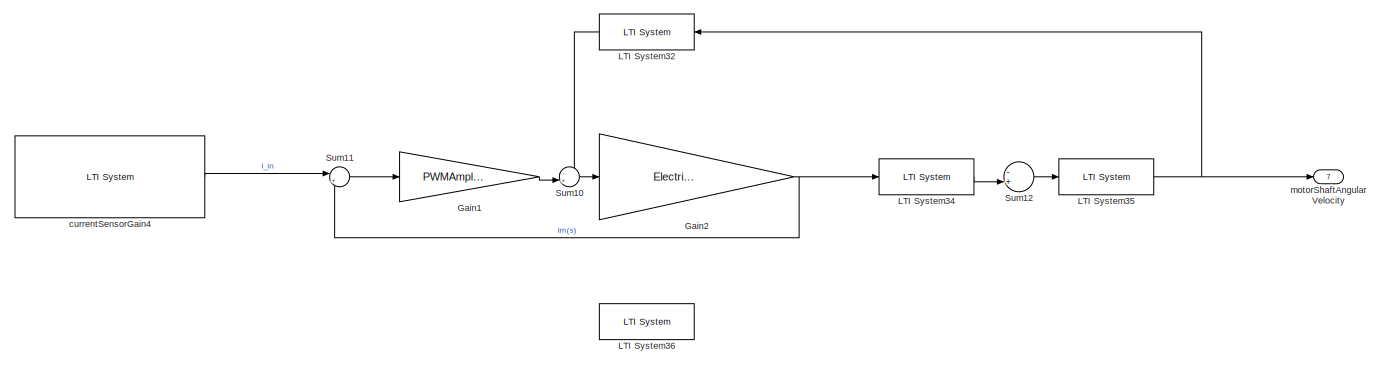
[diagram: root canvas - part 1/5, full width, top band]
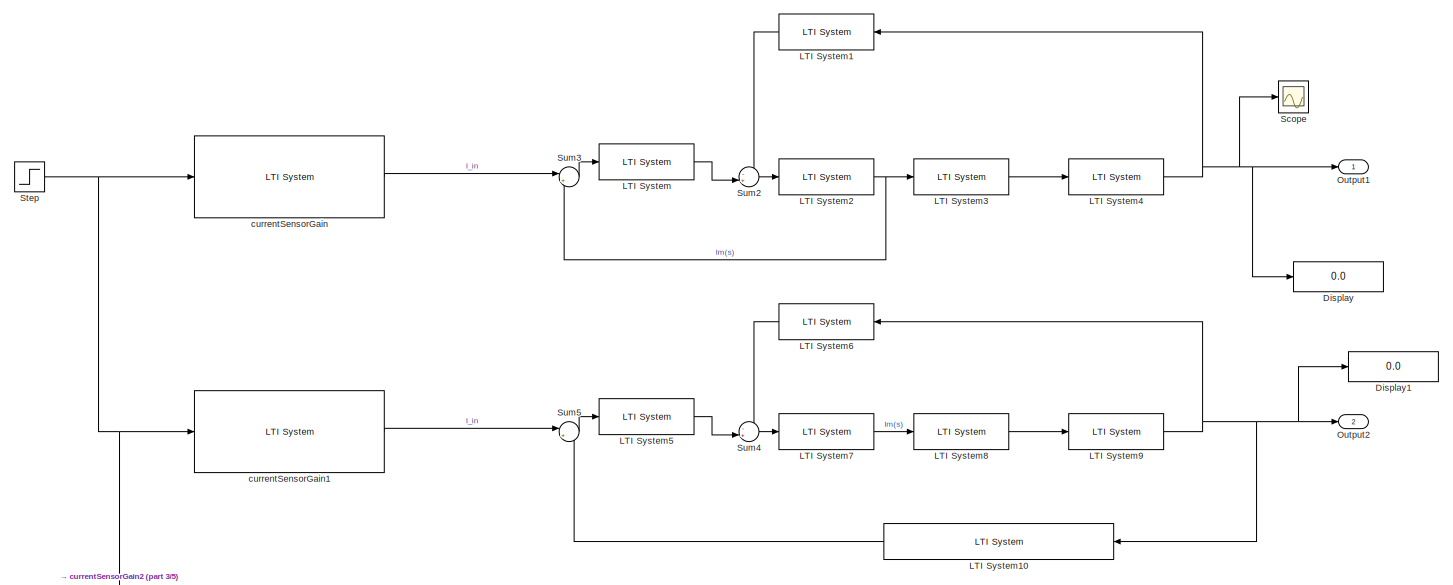
[diagram: root canvas - part 2/5, full width, top band]
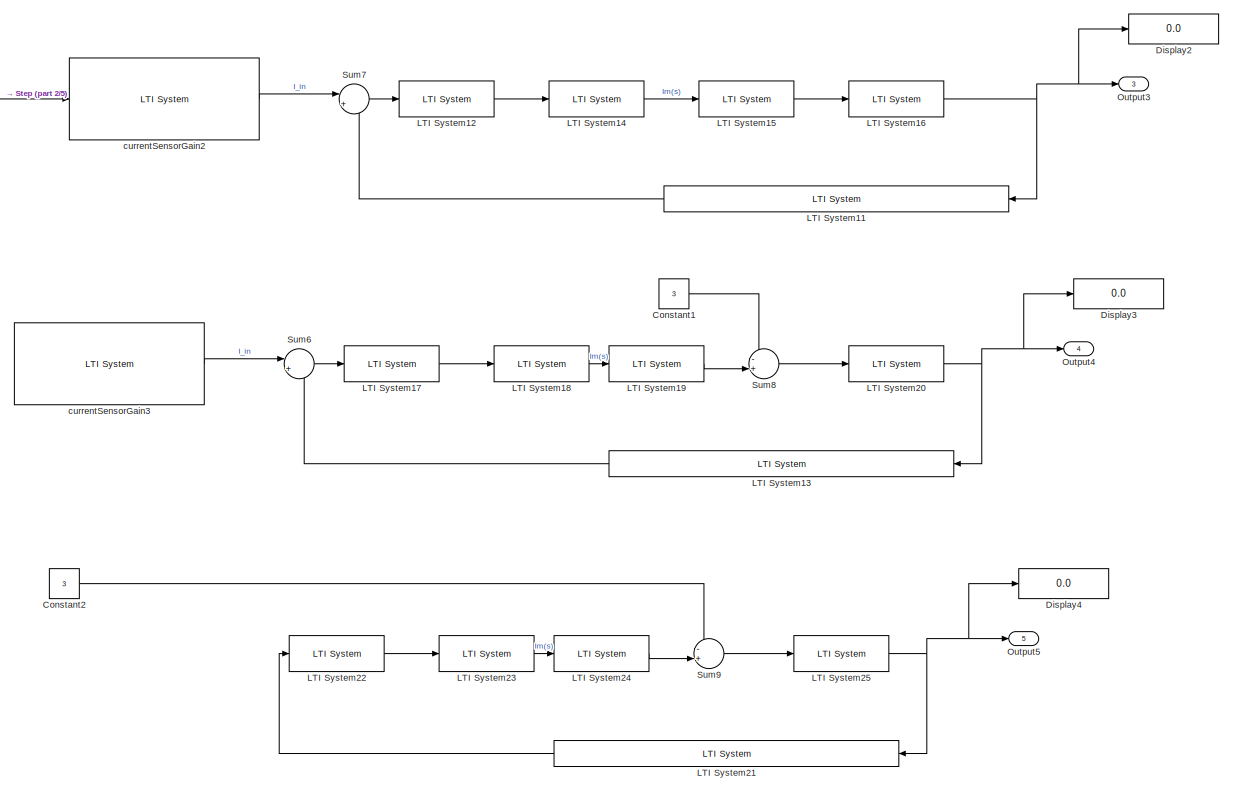
[diagram: root canvas - part 3/5, central region]
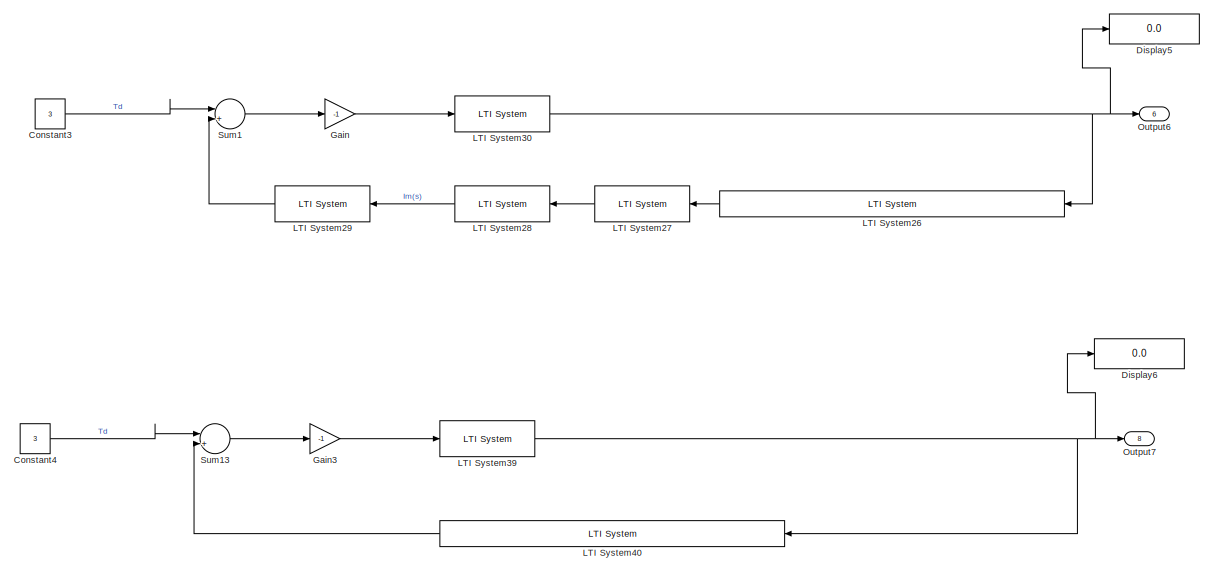
[diagram: root canvas - part 4/5, bottom center region]
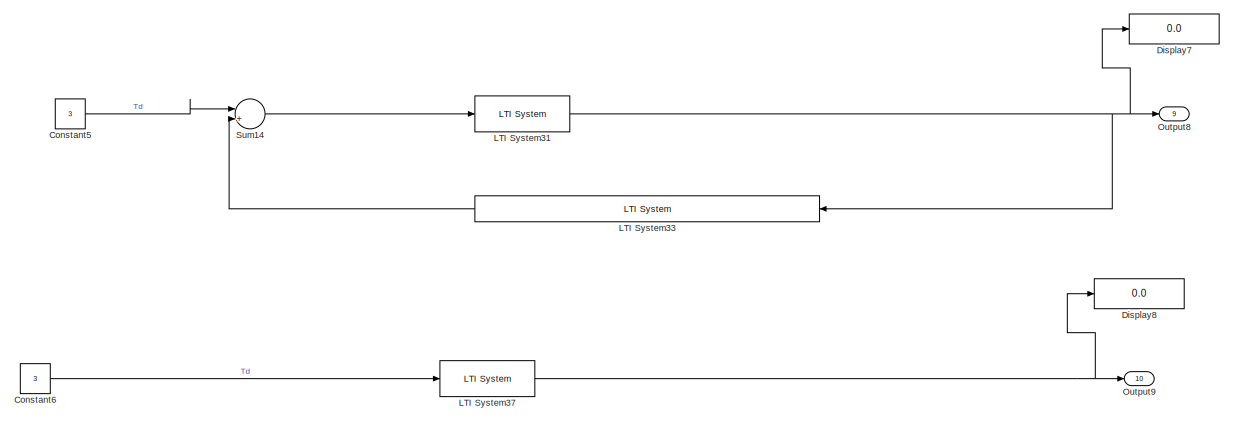
[diagram: root canvas - part 5/5, bottom center region]
MODEL slx_3748cdfd415a
KIND model
CONFIG AbsTol = auto
CONFIG EnableMultiTasking = off
CONFIG FixedStep = auto
CONFIG MaxStep = auto
CONFIG MinStep = auto
CONFIG RelTol = 1e-3
CONFIG SampleTimeConstraint = Unconstrained
CONFIG Solver = VariableStepAuto
CONFIG SolverName = VariableStepAuto
CONFIG StartTime = 0.0
CONFIG StopTime = 10.0
BLOCK [Constant] Constant1
  Commented = on
  Value = 3
BLOCK [Constant] Constant2
  Commented = on
  Value = 3
BLOCK [Constant] Constant3
  Commented = on
  Value = 3
BLOCK [Constant] Constant4
  Commented = on
  Value = 3
BLOCK [Constant] Constant5
  Commented = on
  Value = 3
BLOCK [Constant] Constant6
  Commented = on
  Value = 3
BLOCK [Display] Display
  Commented = on
  Decimation = 1
  Ports = [1]
BLOCK [Display] Display1
  Commented = on
  Decimation = 1
  Ports = [1]
BLOCK [Display] Display2
  Commented = on
  Decimation = 1
  Ports = [1]
BLOCK [Display] Display3
  Commented = on
  Decimation = 1
  Ports = [1]
BLOCK [Display] Display4
  Commented = on
  Decimation = 1
  Ports = [1]
BLOCK [Display] Display5
  Commented = on
  Decimation = 1
  Ports = [1]
BLOCK [Display] Display6
  Commented = on
  Decimation = 1
  Ports = [1]
BLOCK [Display] Display7
  Commented = on
  Decimation = 1
  Ports = [1]
BLOCK [Display] Display8
  Commented = on
  Decimation = 1
  Ports = [1]
BLOCK [Gain] Gain
  Commented = on
  Gain = -1
BLOCK [Gain] Gain1
  Commented = on
  Gain = PWMAmplifierDCgain
BLOCK [Gain] Gain2
  Commented = on
  Gain = ElectricalWindingOfMotorDCGain
BLOCK [Gain] Gain3
  Commented = on
  Gain = -1
BLOCK [Reference] LTI System  REF=cstblocks/LTI System
  Commented = on
  Ports = [1, 1]
  SourceBlock = cstblocks/LTI System
  SourceProductBaseCode = CT
  SourceType = LTI Block
BLOCK [Reference] LTI System1  REF=cstblocks/LTI System
  Commented = on
  NameLocation = top
  Ports = [1, 1]
  SourceBlock = cstblocks/LTI System
  SourceProductBaseCode = CT
  SourceType = LTI Block
BLOCK [Reference] LTI System10  REF=cstblocks/LTI System
  Commented = on
  NameLocation = top
  Ports = [1, 1]
  SourceBlock = cstblocks/LTI System
  SourceProductBaseCode = CT
  SourceType = LTI Block
BLOCK [Reference] LTI System11  REF=cstblocks/LTI System
  Commented = on
  NameLocation = top
  Ports = [1, 1]
  SourceBlock = cstblocks/LTI System
  SourceProductBaseCode = CT
  SourceType = LTI Block
BLOCK [Reference] LTI System12  REF=cstblocks/LTI System
  Commented = on
  Ports = [1, 1]
  SourceBlock = cstblocks/LTI System
  SourceProductBaseCode = CT
  SourceType = LTI Block
BLOCK [Reference] LTI System13  REF=cstblocks/LTI System
  Commented = on
  NameLocation = top
  Ports = [1, 1]
  SourceBlock = cstblocks/LTI System
  SourceProductBaseCode = CT
  SourceType = LTI Block
BLOCK [Reference] LTI System14  REF=cstblocks/LTI System
  Commented = on
  Ports = [1, 1]
  SourceBlock = cstblocks/LTI System
  SourceProductBaseCode = CT
  SourceType = LTI Block
BLOCK [Reference] LTI System15  REF=cstblocks/LTI System
  Commented = on
  Ports = [1, 1]
  SourceBlock = cstblocks/LTI System
  SourceProductBaseCode = CT
  SourceType = LTI Block
BLOCK [Reference] LTI System16  REF=cstblocks/LTI System
  Commented = on
  Ports = [1, 1]
  SourceBlock = cstblocks/LTI System
  SourceProductBaseCode = CT
  SourceType = LTI Block
BLOCK [Reference] LTI System17  REF=cstblocks/LTI System
  Commented = on
  Ports = [1, 1]
  SourceBlock = cstblocks/LTI System
  SourceProductBaseCode = CT
  SourceType = LTI Block
BLOCK [Reference] LTI System18  REF=cstblocks/LTI System
  Commented = on
  Ports = [1, 1]
  SourceBlock = cstblocks/LTI System
  SourceProductBaseCode = CT
  SourceType = LTI Block
BLOCK [Reference] LTI System19  REF=cstblocks/LTI System
  Commented = on
  Ports = [1, 1]
  SourceBlock = cstblocks/LTI System
  SourceProductBaseCode = CT
  SourceType = LTI Block
BLOCK [Reference] LTI System2  REF=cstblocks/LTI System
  Commented = on
  Ports = [1, 1]
  SourceBlock = cstblocks/LTI System
  SourceProductBaseCode = CT
  SourceType = LTI Block
BLOCK [Reference] LTI System20  REF=cstblocks/LTI System
  Commented = on
  Ports = [1, 1]
  SourceBlock = cstblocks/LTI System
  SourceProductBaseCode = CT
  SourceType = LTI Block
BLOCK [Reference] LTI System21  REF=cstblocks/LTI System
  Commented = on
  NameLocation = top
  Ports = [1, 1]
  SourceBlock = cstblocks/LTI System
  SourceProductBaseCode = CT
  SourceType = LTI Block
BLOCK [Reference] LTI System22  REF=cstblocks/LTI System
  Commented = on
  Ports = [1, 1]
  SourceBlock = cstblocks/LTI System
  SourceProductBaseCode = CT
  SourceType = LTI Block
BLOCK [Reference] LTI System23  REF=cstblocks/LTI System
  Commented = on
  Ports = [1, 1]
  SourceBlock = cstblocks/LTI System
  SourceProductBaseCode = CT
  SourceType = LTI Block
BLOCK [Reference] LTI System24  REF=cstblocks/LTI System
  Commented = on
  Ports = [1, 1]
  SourceBlock = cstblocks/LTI System
  SourceProductBaseCode = CT
  SourceType = LTI Block
BLOCK [Reference] LTI System25  REF=cstblocks/LTI System
  Commented = on
  Ports = [1, 1]
  SourceBlock = cstblocks/LTI System
  SourceProductBaseCode = CT
  SourceType = LTI Block
BLOCK [Reference] LTI System26  REF=cstblocks/LTI System
  Commented = on
  NameLocation = top
  Ports = [1, 1]
  SourceBlock = cstblocks/LTI System
  SourceProductBaseCode = CT
  SourceType = LTI Block
BLOCK [Reference] LTI System27  REF=cstblocks/LTI System
  Commented = on
  NameLocation = top
  Ports = [1, 1]
  SourceBlock = cstblocks/LTI System
  SourceProductBaseCode = CT
  SourceType = LTI Block
BLOCK [Reference] LTI System28  REF=cstblocks/LTI System
  Commented = on
  NameLocation = top
  Ports = [1, 1]
  SourceBlock = cstblocks/LTI System
  SourceProductBaseCode = CT
  SourceType = LTI Block
BLOCK [Reference] LTI System29  REF=cstblocks/LTI System
  Commented = on
  NameLocation = top
  Ports = [1, 1]
  SourceBlock = cstblocks/LTI System
  SourceProductBaseCode = CT
  SourceType = LTI Block
BLOCK [Reference] LTI System3  REF=cstblocks/LTI System
  Commented = on
  Ports = [1, 1]
  SourceBlock = cstblocks/LTI System
  SourceProductBaseCode = CT
  SourceType = LTI Block
BLOCK [Reference] LTI System30  REF=cstblocks/LTI System
  Commented = on
  Ports = [1, 1]
  SourceBlock = cstblocks/LTI System
  SourceProductBaseCode = CT
  SourceType = LTI Block
BLOCK [Reference] LTI System31  REF=cstblocks/LTI System
  Commented = on
  Ports = [1, 1]
  SourceBlock = cstblocks/LTI System
  SourceProductBaseCode = CT
  SourceType = LTI Block
BLOCK [Reference] LTI System32  REF=cstblocks/LTI System
  Commented = on
  NameLocation = top
  Ports = [1, 1]
  SourceBlock = cstblocks/LTI System
  SourceProductBaseCode = CT
  SourceType = LTI Block
BLOCK [Reference] LTI System33  REF=cstblocks/LTI System
  Commented = on
  NameLocation = top
  Ports = [1, 1]
  SourceBlock = cstblocks/LTI System
  SourceProductBaseCode = CT
  SourceType = LTI Block
BLOCK [Reference] LTI System34  REF=cstblocks/LTI System
  Commented = on
  Ports = [1, 1]
  SourceBlock = cstblocks/LTI System
  SourceProductBaseCode = CT
  SourceType = LTI Block
BLOCK [Reference] LTI System35  REF=cstblocks/LTI System
  Commented = on
  Ports = [1, 1]
  SourceBlock = cstblocks/LTI System
  SourceProductBaseCode = CT
  SourceType = LTI Block
BLOCK [Reference] LTI System36  REF=cstblocks/LTI System
  Commented = on
  NameLocation = top
  Ports = [1, 1]
  SourceBlock = cstblocks/LTI System
  SourceProductBaseCode = CT
  SourceType = LTI Block
BLOCK [Reference] LTI System37  REF=cstblocks/LTI System
  Commented = on
  Ports = [1, 1]
  SourceBlock = cstblocks/LTI System
  SourceProductBaseCode = CT
  SourceType = LTI Block
BLOCK [Reference] LTI System39  REF=cstblocks/LTI System
  Commented = on
  Ports = [1, 1]
  SourceBlock = cstblocks/LTI System
  SourceProductBaseCode = CT
  SourceType = LTI Block
BLOCK [Reference] LTI System4  REF=cstblocks/LTI System
  Commented = on
  Ports = [1, 1]
  SourceBlock = cstblocks/LTI System
  SourceProductBaseCode = CT
  SourceType = LTI Block
BLOCK [Reference] LTI System40  REF=cstblocks/LTI System
  Commented = on
  NameLocation = top
  Ports = [1, 1]
  SourceBlock = cstblocks/LTI System
  SourceProductBaseCode = CT
  SourceType = LTI Block
BLOCK [Reference] LTI System5  REF=cstblocks/LTI System
  Commented = on
  Ports = [1, 1]
  SourceBlock = cstblocks/LTI System
  SourceProductBaseCode = CT
  SourceType = LTI Block
BLOCK [Reference] LTI System6  REF=cstblocks/LTI System
  Commented = on
  NameLocation = top
  Ports = [1, 1]
  SourceBlock = cstblocks/LTI System
  SourceProductBaseCode = CT
  SourceType = LTI Block
BLOCK [Reference] LTI System7  REF=cstblocks/LTI System
  Commented = on
  Ports = [1, 1]
  SourceBlock = cstblocks/LTI System
  SourceProductBaseCode = CT
  SourceType = LTI Block
BLOCK [Reference] LTI System8  REF=cstblocks/LTI System
  Commented = on
  Ports = [1, 1]
  SourceBlock = cstblocks/LTI System
  SourceProductBaseCode = CT
  SourceType = LTI Block
BLOCK [Reference] LTI System9  REF=cstblocks/LTI System
  Commented = on
  Ports = [1, 1]
  SourceBlock = cstblocks/LTI System
  SourceProductBaseCode = CT
  SourceType = LTI Block
BLOCK [Outport] Output1
BLOCK [Outport] Output2
  Port = 2
BLOCK [Outport] Output3
  Port = 3
BLOCK [Outport] Output4
  Port = 4
BLOCK [Outport] Output5
  Port = 5
BLOCK [Outport] Output6
  Port = 6
BLOCK [Outport] Output7
  Port = 8
BLOCK [Outport] Output8
  Port = 9
BLOCK [Outport] Output9
  Port = 10
BLOCK [Scope] Scope
  Commented = on
  Floating = off
  NumInputPorts = 1
  Ports = [1]
  ScopeSpecificationString = Simulink.scopes.TimeScopeBlockCfg('CurrentConfiguration', extmgr.ConfigurationSet(extmgr.Configuration('Core','General UI',true),extmgr.Configuration('Core','Source UI',true),extmgr.Configuration('Sources','WiredSimulink',true),extmgr.Configuration('Visuals','Time Domain',true,'SerializedDisplays',{struct('MinYLimReal','-13.30507','MaxYLimReal','119.74561','YLabelReal','','MinYLimMag','0.00000','M...<+1374ch>
BLOCK [Step] Step
  Commented = on
  SampleTime = 0
  Time = 0
BLOCK [Sum] Sum1
  Commented = on
  Inputs = |+-|
  Ports = [2, 1]
BLOCK [Sum] Sum10
  Commented = on
  Inputs = -+|
  Ports = [2, 1]
BLOCK [Sum] Sum11
  Commented = on
  Inputs = |+-
  Ports = [2, 1]
BLOCK [Sum] Sum12
  Commented = on
  Inputs = -+|
  Ports = [2, 1]
BLOCK [Sum] Sum13
  Commented = on
  Inputs = |+-|
  Ports = [2, 1]
BLOCK [Sum] Sum14
  Commented = on
  Inputs = |+-|
  Ports = [2, 1]
BLOCK [Sum] Sum2
  Commented = on
  Inputs = -+|
  Ports = [2, 1]
BLOCK [Sum] Sum3
  Commented = on
  Inputs = |+-
  Ports = [2, 1]
BLOCK [Sum] Sum4
  Commented = on
  Inputs = -+|
  Ports = [2, 1]
BLOCK [Sum] Sum5
  Commented = on
  Inputs = |+-
  Ports = [2, 1]
BLOCK [Sum] Sum6
  Commented = on
  Inputs = |+-
  Ports = [2, 1]
BLOCK [Sum] Sum7
  Commented = on
  Inputs = |+-
  Ports = [2, 1]
BLOCK [Sum] Sum8
  Commented = on
  Inputs = -+|
  Ports = [2, 1]
BLOCK [Sum] Sum9
  Commented = on
  Inputs = -+|
  Ports = [2, 1]
BLOCK [Reference] currentSensorGain  REF=cstblocks/LTI System
  Commented = on
  Ports = [1, 1]
  SourceBlock = cstblocks/LTI System
  SourceProductBaseCode = CT
  SourceType = LTI Block
BLOCK [Reference] currentSensorGain1  REF=cstblocks/LTI System
  Commented = on
  Ports = [1, 1]
  SourceBlock = cstblocks/LTI System
  SourceProductBaseCode = CT
  SourceType = LTI Block
BLOCK [Reference] currentSensorGain2  REF=cstblocks/LTI System
  Commented = on
  Ports = [1, 1]
  SourceBlock = cstblocks/LTI System
  SourceProductBaseCode = CT
  SourceType = LTI Block
BLOCK [Reference] currentSensorGain3  REF=cstblocks/LTI System
  Commented = on
  Ports = [1, 1]
  SourceBlock = cstblocks/LTI System
  SourceProductBaseCode = CT
  SourceType = LTI Block
BLOCK [Reference] currentSensorGain4  REF=cstblocks/LTI System
  Commented = on
  Ports = [1, 1]
  SourceBlock = cstblocks/LTI System
  SourceProductBaseCode = CT
  SourceType = LTI Block
BLOCK [Outport] motorShaftAngularVelocity
  Port = 7
LINE Constant1:1 -> Sum8:1
LINE Constant2:1 -> Sum9:1
LINE Constant3:1 -> Sum1:1
LINE Constant4:1 -> Sum13:1
LINE Constant5:1 -> Sum14:1
LINE Constant6:1 -> LTI System37:1
LINE Gain1:1 -> Sum10:2
NET Gain2:1 -> LTI System34:1, Sum11:2
LINE Gain3:1 -> LTI System39:1
LINE Gain:1 -> LTI System30:1
LINE LTI System10:1 -> Sum5:2
LINE LTI System11:1 -> Sum7:2
LINE LTI System12:1 -> LTI System14:1
LINE LTI System13:1 -> Sum6:2
LINE LTI System14:1 -> LTI System15:1
LINE LTI System15:1 -> LTI System16:1
NET LTI System16:1 -> Display2:1, LTI System11:1, Output3:1
LINE LTI System17:1 -> LTI System18:1
LINE LTI System18:1 -> LTI System19:1
LINE LTI System19:1 -> Sum8:2
LINE LTI System1:1 -> Sum2:1
NET LTI System20:1 -> Display3:1, LTI System13:1, Output4:1
LINE LTI System21:1 -> LTI System22:1
LINE LTI System22:1 -> LTI System23:1
LINE LTI System23:1 -> LTI System24:1
LINE LTI System24:1 -> Sum9:2
NET LTI System25:1 -> Display4:1, LTI System21:1, Output5:1
LINE LTI System26:1 -> LTI System27:1
LINE LTI System27:1 -> LTI System28:1
LINE LTI System28:1 -> LTI System29:1
LINE LTI System29:1 -> Sum1:2
NET LTI System2:1 -> LTI System3:1, Sum3:2
NET LTI System30:1 -> Display5:1, LTI System26:1, Output6:1
NET LTI System31:1 -> Display7:1, LTI System33:1, Output8:1
LINE LTI System32:1 -> Sum10:1
LINE LTI System33:1 -> Sum14:2
LINE LTI System34:1 -> Sum12:2
NET LTI System35:1 -> LTI System32:1, motorShaftAngularVelocity:1
NET LTI System37:1 -> Display8:1, Output9:1
NET LTI System39:1 -> Display6:1, LTI System40:1, Output7:1
LINE LTI System3:1 -> LTI System4:1
LINE LTI System40:1 -> Sum13:2
NET LTI System4:1 -> Display:1, LTI System1:1, Output1:1, Scope:1
LINE LTI System5:1 -> Sum4:2
LINE LTI System6:1 -> Sum4:1
LINE LTI System7:1 -> LTI System8:1
LINE LTI System8:1 -> LTI System9:1
NET LTI System9:1 -> Display1:1, LTI System10:1, LTI System6:1, Output2:1
LINE LTI System:1 -> Sum2:2
NET Step:1 -> currentSensorGain1:1, currentSensorGain2:1, currentSensorGain:1
LINE Sum10:1 -> Gain2:1
LINE Sum11:1 -> Gain1:1
LINE Sum12:1 -> LTI System35:1
LINE Sum13:1 -> Gain3:1
LINE Sum14:1 -> LTI System31:1
LINE Sum1:1 -> Gain:1
LINE Sum2:1 -> LTI System2:1
LINE Sum3:1 -> LTI System:1
LINE Sum4:1 -> LTI System7:1
LINE Sum5:1 -> LTI System5:1
LINE Sum6:1 -> LTI System17:1
LINE Sum7:1 -> LTI System12:1
LINE Sum8:1 -> LTI System20:1
LINE Sum9:1 -> LTI System25:1
LINE currentSensorGain1:1 -> Sum5:1
LINE currentSensorGain2:1 -> Sum7:1
LINE currentSensorGain3:1 -> Sum6:1
LINE currentSensorGain4:1 -> Sum11:1
LINE currentSensorGain:1 -> Sum3:1
note: NET lines group one-source signal fan-out (src -> all destinations, sorted); 1:1 wires keep LINE
